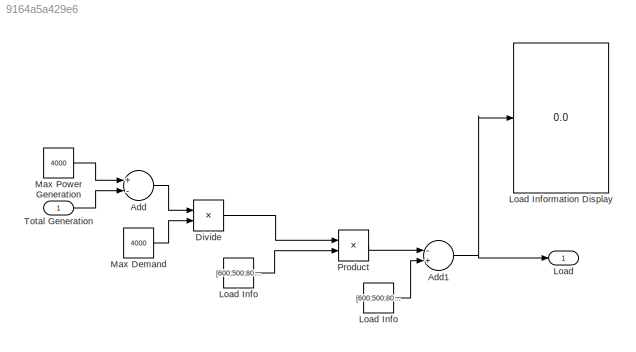
MODEL slx_9164a5a429e6
KIND model
BLOCK [Sum] Add
  InputSameDT = off
  Inputs = +-
  OutDataTypeStr = Inherit: Inherit via internal rule
  Ports = [2, 1]
  SaturateOnIntegerOverflow = off
BLOCK [Sum] Add1
  InputSameDT = off
  Inputs = -+
  OutDataTypeStr = Inherit: Inherit via internal rule
  Ports = [2, 1]
  SaturateOnIntegerOverflow = off
BLOCK [Product] Divide
  InputSameDT = off
  Inputs = */
  OutDataTypeStr = Inherit: Inherit via internal rule
  Ports = [2, 1]
  RndMeth = Floor
  SaturateOnIntegerOverflow = off
BLOCK [Outport] Load
  IconDisplay = Port number
BLOCK [Constant] Load Info
  Value = [600;500;800;700;400;200;450;350]
BLOCK [Constant] Load Info 
  Value = [600;500;800;700;400;200;450;350]
BLOCK [Display] Load Information Display
  Decimation = 1
  Lockdown = off
  Ports = [1]
BLOCK [Constant] Max Demand
  Value = 4000
BLOCK [Constant] Max Power Generation
  Value = 4000
BLOCK [Product] Product
  InputSameDT = off
  OutDataTypeStr = Inherit: Inherit via internal rule
  Ports = [2, 1]
  RndMeth = Floor
  SaturateOnIntegerOverflow = off
BLOCK [Inport] Total Generation
  IconDisplay = Port number
NET Add1:1 -> Load Information Display:1, Load:1
LINE Add:1 -> Divide:1
LINE Divide:1 -> Product:1
LINE Load Info :1 -> Add1:2
LINE Load Info:1 -> Product:2
LINE Max Demand:1 -> Divide:2
LINE Max Power Generation:1 -> Add:1
LINE Product:1 -> Add1:1
LINE Total Generation:1 -> Add:2
note: NET lines group one-source signal fan-out (src -> all destinations, sorted); 1:1 wires keep LINE
